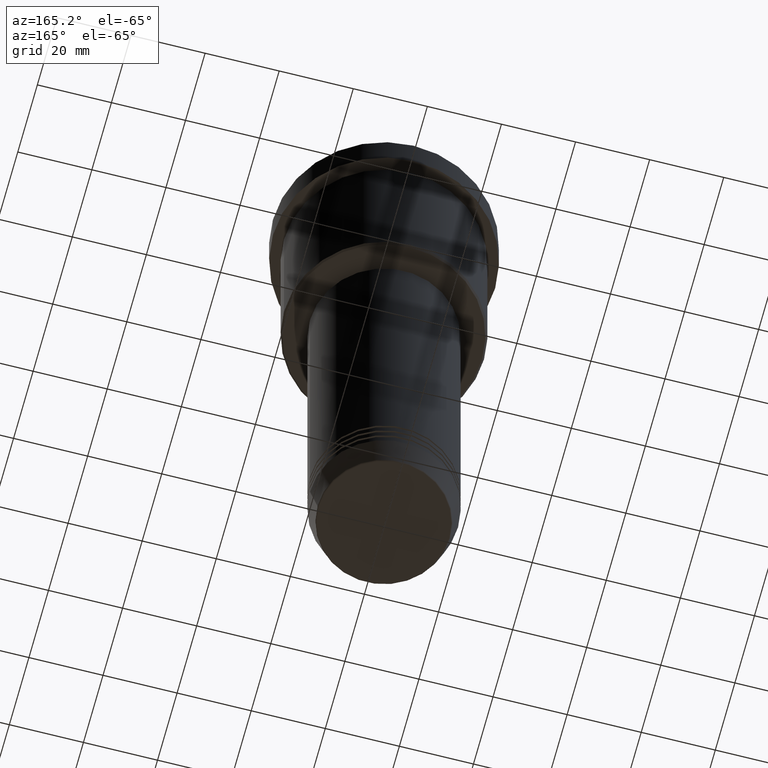
[diagram: clean part render]
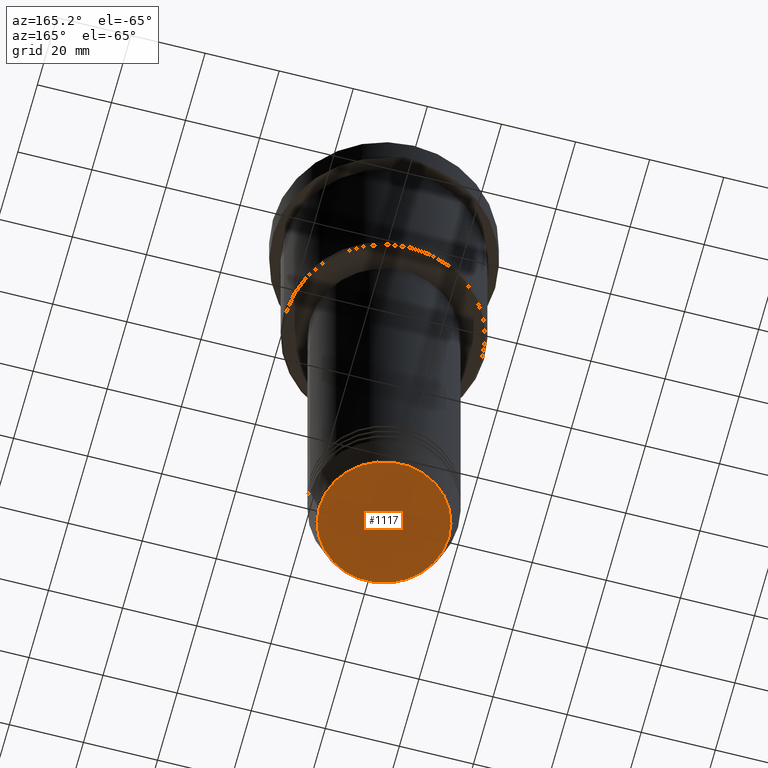
[diagram: same view with one face highlighted and labeled with its STEP entity id]
A machine part, auxiliary view. The second image highlights one B-rep face of the part: STEP entity #1117.
In plain terms, the highlighted planar face has unit normal (0, -0, 1).
Its self-contained STEP definition (entity closure, byte-faithful):
#50 = DIRECTION ( 'NONE',  ( 0.000000000000000000, 0.000000000000000000, -1.000000000000000000 ) ) ;
#86 = VERTEX_POINT ( 'NONE', #861 ) ;
#118 = EDGE_CURVE ( 'NONE', #647, #86, #658, .T. ) ;
#145 = AXIS2_PLACEMENT_3D ( 'NONE', #365, #813, #549 ) ;
#180 = CARTESIAN_POINT ( 'NONE',  ( -17.47274296656154036, 2.169366823916868503E-15, -170.9999999999999716 ) ) ;
#207 = EDGE_LOOP ( 'NONE', ( #1104, #493 ) ) ;
#272 = DIRECTION ( 'NONE',  ( 0.000000000000000000, -0.000000000000000000, 1.000000000000000000 ) ) ;
#365 = CARTESIAN_POINT ( 'NONE',  ( 0.000000000000000000, 0.000000000000000000, -170.9999999999999716 ) ) ;
#481 = CIRCLE ( 'NONE', #870, 17.47274296656154036 ) ;
#493 = ORIENTED_EDGE ( 'NONE', *, *, #118, .T. ) ;
#549 = DIRECTION ( 'NONE',  ( 1.000000000000000000, 0.000000000000000000, 0.000000000000000000 ) ) ;
#642 = FACE_OUTER_BOUND ( 'NONE', #207, .T. ) ;
#647 = VERTEX_POINT ( 'NONE', #180 ) ;
#658 = CIRCLE ( 'NONE', #145, 17.47274296656154036 ) ;
#683 = AXIS2_PLACEMENT_3D ( 'NONE', #1180, #272, #997 ) ;
#689 = DIRECTION ( 'NONE',  ( 1.000000000000000000, 0.000000000000000000, 0.000000000000000000 ) ) ;
#813 = DIRECTION ( 'NONE',  ( 0.000000000000000000, 0.000000000000000000, -1.000000000000000000 ) ) ;
#861 = CARTESIAN_POINT ( 'NONE',  ( 17.47274296656154036, 0.000000000000000000, -170.9999999999999716 ) ) ;
#867 = CARTESIAN_POINT ( 'NONE',  ( 0.000000000000000000, 0.000000000000000000, -170.9999999999999716 ) ) ;
#870 = AXIS2_PLACEMENT_3D ( 'NONE', #867, #50, #689 ) ;
#895 = PLANE ( 'NONE',  #683 ) ;
#987 = EDGE_CURVE ( 'NONE', #86, #647, #481, .T. ) ;
#997 = DIRECTION ( 'NONE',  ( 1.000000000000000000, 0.000000000000000000, 0.000000000000000000 ) ) ;
#1104 = ORIENTED_EDGE ( 'NONE', *, *, #987, .T. ) ;
#1117 = ADVANCED_FACE ( 'NONE', ( #642 ), #895, .F. ) ;
#1180 = CARTESIAN_POINT ( 'NONE',  ( 0.000000000000000000, 0.000000000000000000, -170.9999999999999716 ) ) ;